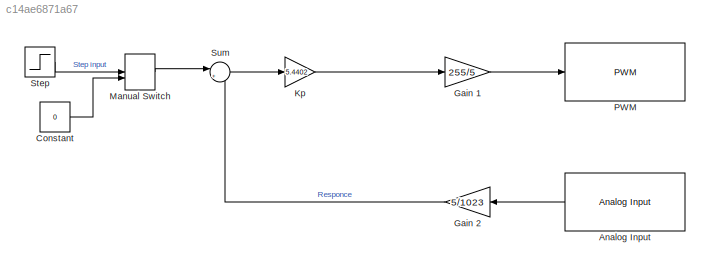
MODEL slx_c14ae6871a67
KIND model
CONFIG AbsTol = auto
CONFIG EnableMultiTasking = on
CONFIG FixedStep = 0.001
CONFIG MaxStep = auto
CONFIG MinStep = auto
CONFIG RelTol = 1e-3
CONFIG SampleTimeConstraint = Unconstrained
CONFIG SolverName = FixedStepAuto
CONFIG StartTime = 0.0
CONFIG StopTime = 50
BLOCK [Reference] Analog Input  REF=arduinolib/Analog Input
  NameLocation = top
  SourceBlock = arduinolib/Analog Input
  SourceType = Arduino Analog Input
BLOCK [Constant] Constant
  Value = 0
BLOCK [Gain] Gain 1
  Gain = 255/5
BLOCK [Gain] Gain 2
  Gain = 5/1023
  NameLocation = top
BLOCK [Gain] Kp
  Gain = 5.4402
BLOCK [ManualSwitch] Manual Switch
BLOCK [Reference] PWM  REF=arduinolib/PWM
  SourceBlock = arduinolib/PWM
  SourceType = Arduino PWM
BLOCK [Step] Step
  SampleTime = 0
BLOCK [Sum] Sum
  Inputs = |+-
LINE Analog Input:1 -> Gain 2:1
LINE Constant:1 -> Manual Switch:2
LINE Gain 1:1 -> PWM:1
LINE Gain 2:1 -> Sum:2
LINE Kp:1 -> Gain 1:1
LINE Manual Switch:1 -> Sum:1
LINE Step:1 -> Manual Switch:1
LINE Sum:1 -> Kp:1
